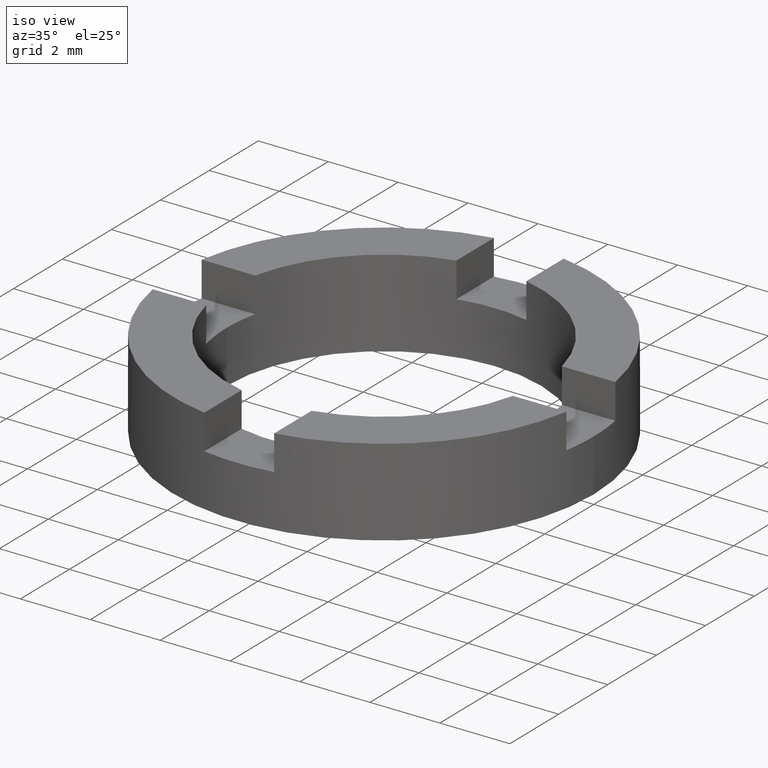
[diagram: clean part render]
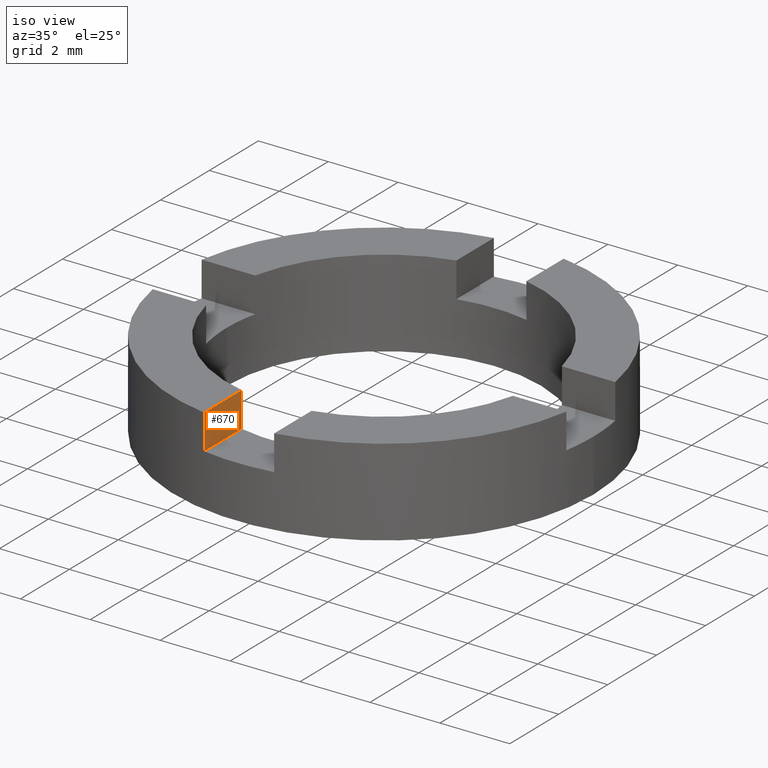
[diagram: same view with one face highlighted and labeled with its STEP entity id]
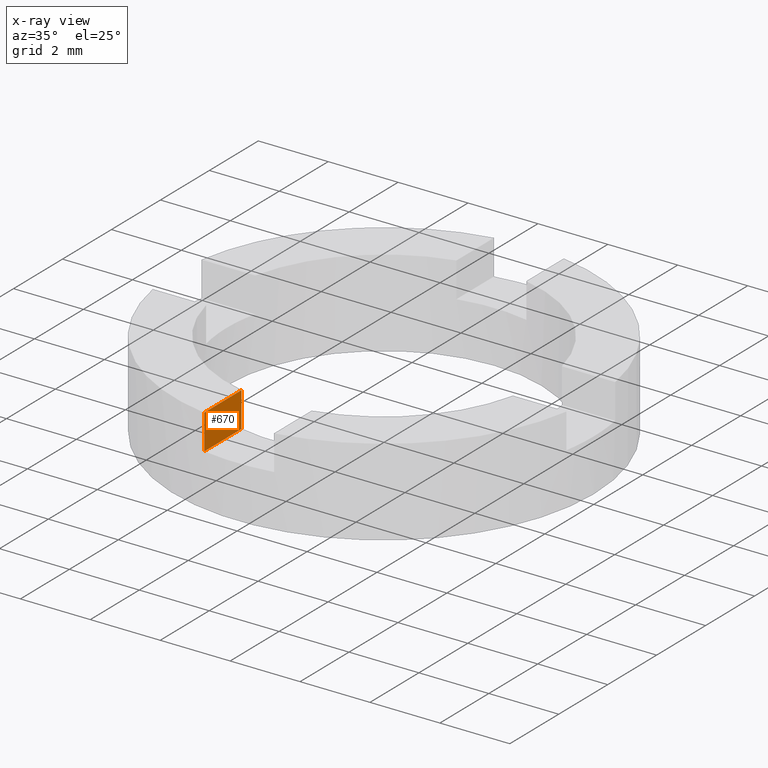
[diagram: x-ray of the same camera — body ghosted, the highlighted face saturated]
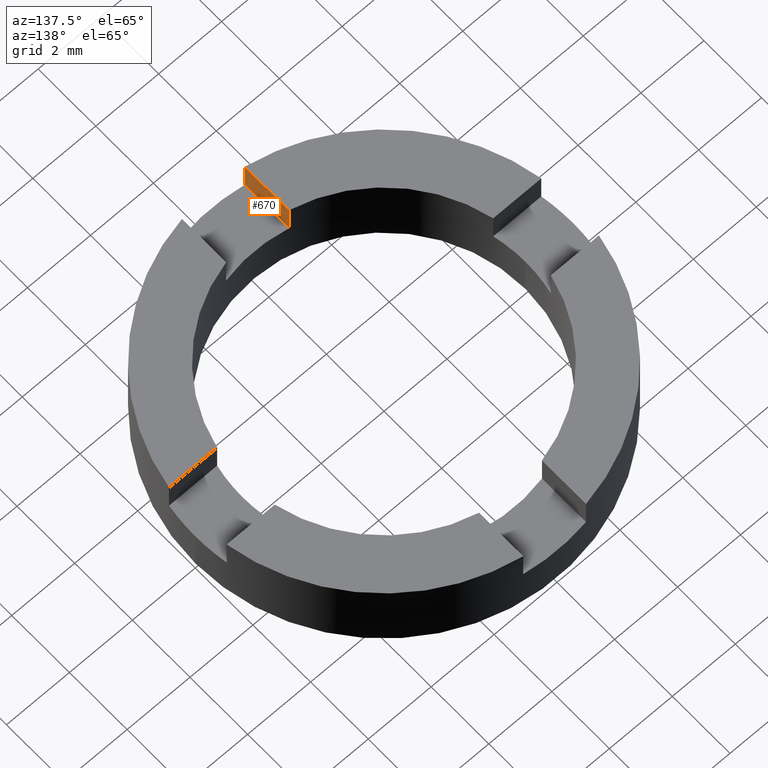
[diagram: same view with one face highlighted and labeled with its STEP entity id]
A machine part, iso view. The second image highlights one B-rep face of the part: STEP entity #670.
The next image is the same camera in x-ray: the body ghosted, the highlighted face saturated — about 0% of this face is hidden behind the body in this view.
A second angle (auxiliary view) of the same face is appended — the face is thin or edge-on in the first view.
In plain terms, the highlighted planar face has unit normal (1, 0, 0).
Its self-contained STEP definition (entity closure, byte-faithful):
#4 = CARTESIAN_POINT ( 'NONE',  ( -0.9999999999999986677, -5.916079783099617906, 2.500000000000000000 ) ) ;
#10 = CARTESIAN_POINT ( 'NONE',  ( -0.9999999999999986677, -4.387482193696060406, 1.500000000000000000 ) ) ;
#42 = DIRECTION ( 'NONE',  ( -0.000000000000000000, -0.000000000000000000, 1.000000000000000000 ) ) ;
#83 = PLANE ( 'NONE',  #243 ) ;
#91 = LINE ( 'NONE', #499, #363 ) ;
#93 = CARTESIAN_POINT ( 'NONE',  ( -0.9999999999999986677, 0.000000000000000000, 1.500000000000000000 ) ) ;
#99 = ORIENTED_EDGE ( 'NONE', *, *, #745, .F. ) ;
#114 = DIRECTION ( 'NONE',  ( 0.000000000000000000, 0.000000000000000000, -1.000000000000000000 ) ) ;
#179 = EDGE_CURVE ( 'NONE', #234, #438, #329, .T. ) ;
#225 = ORIENTED_EDGE ( 'NONE', *, *, #294, .F. ) ;
#233 = CARTESIAN_POINT ( 'NONE',  ( -0.9999999999999986677, 0.000000000000000000, 2.500000000000000000 ) ) ;
#234 = VERTEX_POINT ( 'NONE', #10 ) ;
#243 = AXIS2_PLACEMENT_3D ( 'NONE', #93, #522, #114 ) ;
#294 = EDGE_CURVE ( 'NONE', #457, #438, #353, .T. ) ;
#329 = LINE ( 'NONE', #545, #347 ) ;
#347 = VECTOR ( 'NONE', #42, 1000.000000000000000 ) ;
#352 = DIRECTION ( 'NONE',  ( 0.000000000000000000, 1.000000000000000000, -0.000000000000000000 ) ) ;
#353 = LINE ( 'NONE', #233, #597 ) ;
#363 = VECTOR ( 'NONE', #543, 1000.000000000000000 ) ;
#381 = ORIENTED_EDGE ( 'NONE', *, *, #706, .T. ) ;
#399 = FACE_OUTER_BOUND ( 'NONE', #587, .T. ) ;
#438 = VERTEX_POINT ( 'NONE', #510 ) ;
#457 = VERTEX_POINT ( 'NONE', #4 ) ;
#497 = VERTEX_POINT ( 'NONE', #760 ) ;
#499 = CARTESIAN_POINT ( 'NONE',  ( -0.9999999999999986677, -5.916079783099617906, 1.500000000000000000 ) ) ;
#510 = CARTESIAN_POINT ( 'NONE',  ( -0.9999999999999986677, -4.387482193696060406, 2.500000000000000000 ) ) ;
#522 = DIRECTION ( 'NONE',  ( 1.000000000000000000, 0.000000000000000000, 0.000000000000000000 ) ) ;
#527 = CARTESIAN_POINT ( 'NONE',  ( -0.9999999999999986677, 0.000000000000000000, 1.500000000000000000 ) ) ;
#543 = DIRECTION ( 'NONE',  ( -0.000000000000000000, -0.000000000000000000, 1.000000000000000000 ) ) ;
#545 = CARTESIAN_POINT ( 'NONE',  ( -0.9999999999999986677, -4.387482193696060406, 1.500000000000000000 ) ) ;
#587 = EDGE_LOOP ( 'NONE', ( #225, #99, #381, #601 ) ) ;
#597 = VECTOR ( 'NONE', #768, 1000.000000000000000 ) ;
#601 = ORIENTED_EDGE ( 'NONE', *, *, #179, .T. ) ;
#621 = VECTOR ( 'NONE', #352, 1000.000000000000000 ) ;
#667 = LINE ( 'NONE', #527, #621 ) ;
#670 = ADVANCED_FACE ( 'NONE', ( #399 ), #83, .T. ) ;
#706 = EDGE_CURVE ( 'NONE', #497, #234, #667, .T. ) ;
#745 = EDGE_CURVE ( 'NONE', #497, #457, #91, .T. ) ;
#760 = CARTESIAN_POINT ( 'NONE',  ( -0.9999999999999986677, -5.916079783099617906, 1.500000000000000000 ) ) ;
#768 = DIRECTION ( 'NONE',  ( 0.000000000000000000, 1.000000000000000000, -0.000000000000000000 ) ) ;